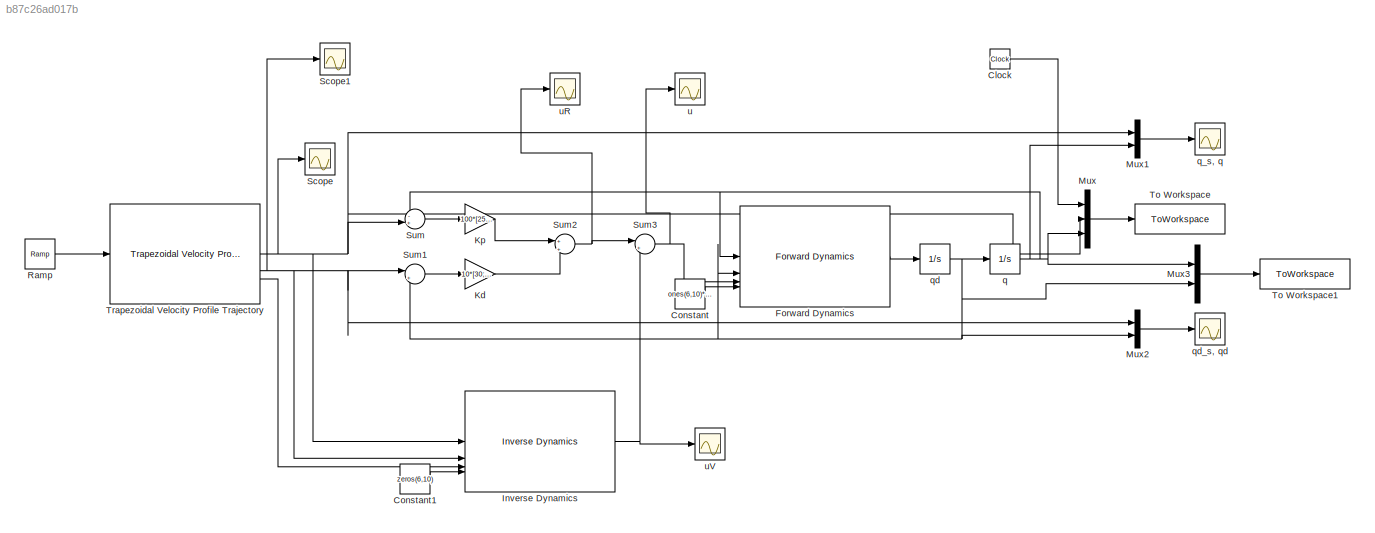
MODEL slx_b87c26ad017b
KIND model
CONFIG AbsTol = auto
CONFIG EnableMultiTasking = off
CONFIG FixedStep = auto
CONFIG MaxStep = auto
CONFIG MinStep = auto
CONFIG RelTol = 1e-3
CONFIG SampleTimeConstraint = Unconstrained
CONFIG SolverName = ode15s
CONFIG StartTime = 0.0
CONFIG StopTime = 15
BLOCK [Clock] Clock
BLOCK [Constant] Constant
  Value = ones(6,10)*0.1
BLOCK [Constant] Constant1
  Value = zeros(6,10)
BLOCK [Reference] Forward Dynamics  REF=robotmaniplib/Forward Dynamics
  SourceBlock = robotmaniplib/Forward Dynamics
  SourceType = Forward Dynamics
BLOCK [Reference] Inverse Dynamics  REF=robotmaniplib/Inverse Dynamics
  SourceBlock = robotmaniplib/Inverse Dynamics
  SourceType = Inverse Dynamics
BLOCK [Gain] Kd
  Gain = 10*[30;12;10;10;20;10;20]
BLOCK [Gain] Kp
  Gain = 100*[25,20,20,20,20,20,1]'
BLOCK [Mux] Mux
  DisplayOption = bar
  Inputs = 3
BLOCK [Mux] Mux1
  DisplayOption = bar
  Inputs = 2
BLOCK [Mux] Mux2
  DisplayOption = bar
  Inputs = 2
BLOCK [Mux] Mux3
  DisplayOption = bar
  Inputs = 2
BLOCK [Reference] Ramp  REF=simulink/Sources/Ramp
  SourceBlock = simulink/Sources/Ramp
  SourceType = Ramp
BLOCK [Scope] Scope
  Floating = off
  NumInputPorts = 1
  ScopeSpecificationString = Simulink.scopes.TimeScopeBlockCfg('CurrentConfiguration', extmgr.ConfigurationSet(extmgr.Configuration('Core','General UI',true),extmgr.Configuration('Core','Source UI',true),extmgr.Configuration('Sources','WiredSimulink',true,'DataLoggingVariableName','ScopeData1'),extmgr.Configuration('Visuals','Time Domain',true,'SerializedDisplays',{struct('MinYLimReal','-7.18877','MaxYLimReal','1.86705','YLab...<+1663ch>
BLOCK [Scope] Scope1
  Floating = off
  NumInputPorts = 1
  ScopeSpecificationString = Simulink.scopes.TimeScopeBlockCfg('CurrentConfiguration', extmgr.ConfigurationSet(extmgr.Configuration('Core','General UI',true),extmgr.Configuration('Core','Source UI',true),extmgr.Configuration('Sources','WiredSimulink',true,'DataLoggingVariableName','ScopeData1'),extmgr.Configuration('Visuals','Time Domain',true,'SerializedDisplays',{struct('MinYLimReal','-1.40334','MaxYLimReal','1.10465','YLab...<+1797ch>
BLOCK [Sum] Sum
  Inputs = -+|
  NameLocation = top
BLOCK [Sum] Sum1
  Inputs = |+-
  NameLocation = top
BLOCK [Sum] Sum2
  Inputs = +|+
BLOCK [Sum] Sum3
  Inputs = |++
BLOCK [ToWorkspace] To Workspace
  FixptAsFi = on
  MaxDataPoints = inf
  SampleTime = -1
  VariableName = configs2
BLOCK [ToWorkspace] To Workspace1
  FixptAsFi = on
  MaxDataPoints = inf
  SampleTime = -1
  VariableName = configs
BLOCK [Reference] Trapezoidal Velocity Profile Trajectory  REF=robotcorelib/Trapezoidal Velocity Profile Trajectory
  LibrarySourceBlock = robotutilslib/Trapezoidal Velocity Profile Trajectory
  SourceBlock = robotcorelib/Trapezoidal Velocity Profile Trajectory
  SourceType = robotics.slcore.internal.block.TrapVelTrajSys
BLOCK [Integrator] q
  InitialCondition = qhome
BLOCK [Scope] q_s, q
  Floating = off
  NumInputPorts = 1
  ScopeSpecificationString = Simulink.scopes.TimeScopeBlockCfg('CurrentConfiguration', extmgr.ConfigurationSet(extmgr.Configuration('Core','General UI',true),extmgr.Configuration('Core','Source UI',true),extmgr.Configuration('Sources','WiredSimulink',true,'DataLoggingVariableName','ScopeData2'),extmgr.Configuration('Visuals','Time Domain',true,'SerializedDisplays',{struct('MinYLimReal','-7.19052','MaxYLimReal','1.88286','YLab...<+2253ch>
BLOCK [Integrator] qd
BLOCK [Scope] qd_s, qd
  Floating = off
  NumInputPorts = 1
  ScopeSpecificationString = Simulink.scopes.TimeScopeBlockCfg('CurrentConfiguration', extmgr.ConfigurationSet(extmgr.Configuration('Core','General UI',true),extmgr.Configuration('Core','Source UI',true),extmgr.Configuration('Sources','WiredSimulink',true,'DataLoggingVariableName','ScopeData2'),extmgr.Configuration('Visuals','Time Domain',true,'SerializedDisplays',{struct('MinYLimReal','-3.23868','MaxYLimReal','0.50988','YLab...<+2292ch>
BLOCK [Scope] u
  Floating = off
  NumInputPorts = 1
  ScopeSpecificationString = Simulink.scopes.TimeScopeBlockCfg('CurrentConfiguration', extmgr.ConfigurationSet(extmgr.Configuration('Core','General UI',true),extmgr.Configuration('Core','Source UI',true),extmgr.Configuration('Sources','WiredSimulink',true,'DataLoggingVariableName','ScopeData2'),extmgr.Configuration('Visuals','Time Domain',true,'SerializedDisplays',{struct('MinYLimReal','-52.55095','MaxYLimReal','24.956','YLab...<+1698ch>
BLOCK [Scope] uR
  Floating = off
  NumInputPorts = 1
  ScopeSpecificationString = Simulink.scopes.TimeScopeBlockCfg('CurrentConfiguration', extmgr.ConfigurationSet(extmgr.Configuration('Core','General UI',true),extmgr.Configuration('Core','Source UI',true),extmgr.Configuration('Sources','WiredSimulink',true,'DataLoggingVariableName','ScopeData1'),extmgr.Configuration('Visuals','Time Domain',true,'SerializedDisplays',{struct('MinYLimReal','-1.57504','MaxYLimReal','1.48972','YLab...<+1676ch>
BLOCK [Scope] uV
  Floating = off
  NumInputPorts = 1
  ScopeSpecificationString = Simulink.scopes.TimeScopeBlockCfg('CurrentConfiguration', extmgr.ConfigurationSet(extmgr.Configuration('Core','General UI',true),extmgr.Configuration('Core','Source UI',true),extmgr.Configuration('Sources','WiredSimulink',true,'DataLoggingVariableName','ScopeData3'),extmgr.Configuration('Visuals','Time Domain',true,'SerializedDisplays',{struct('MinYLimReal','-51.15044','MaxYLimReal','23.49506','YL...<+1812ch>
LINE Clock:1 -> Mux:1
LINE Constant1:1 -> Inverse Dynamics:4
LINE Constant:1 -> Forward Dynamics:4
LINE Forward Dynamics:1 -> qd:1
NET Inverse Dynamics:1 -> Sum3:2, uV:1
LINE Kd:1 -> Sum2:2
LINE Kp:1 -> Sum2:1
LINE Mux1:1 -> q_s, q:1
LINE Mux2:1 -> qd_s, qd:1
LINE Mux3:1 -> To Workspace1:1
LINE Mux:1 -> To Workspace:1
LINE Ramp:1 -> Trapezoidal Velocity Profile Trajectory:1
LINE Sum1:1 -> Kd:1
NET Sum2:1 -> Sum3:1, uR:1
NET Sum3:1 -> Forward Dynamics:3, u:1
LINE Sum:1 -> Kp:1
NET Trapezoidal Velocity Profile Trajectory:1 -> Inverse Dynamics:1, Mux1:1, Mux:2, Scope:1, Sum:2
NET Trapezoidal Velocity Profile Trajectory:2 -> Inverse Dynamics:2, Mux2:1, Scope1:1, Sum1:1
LINE Trapezoidal Velocity Profile Trajectory:3 -> Inverse Dynamics:3
NET q:1 -> Forward Dynamics:1, Mux1:2, Mux3:1, Mux:3, Sum:1
NET qd:1 -> Forward Dynamics:2, Mux2:2, Mux3:2, Sum1:2, q:1
note: NET lines group one-source signal fan-out (src -> all destinations, sorted); 1:1 wires keep LINE
